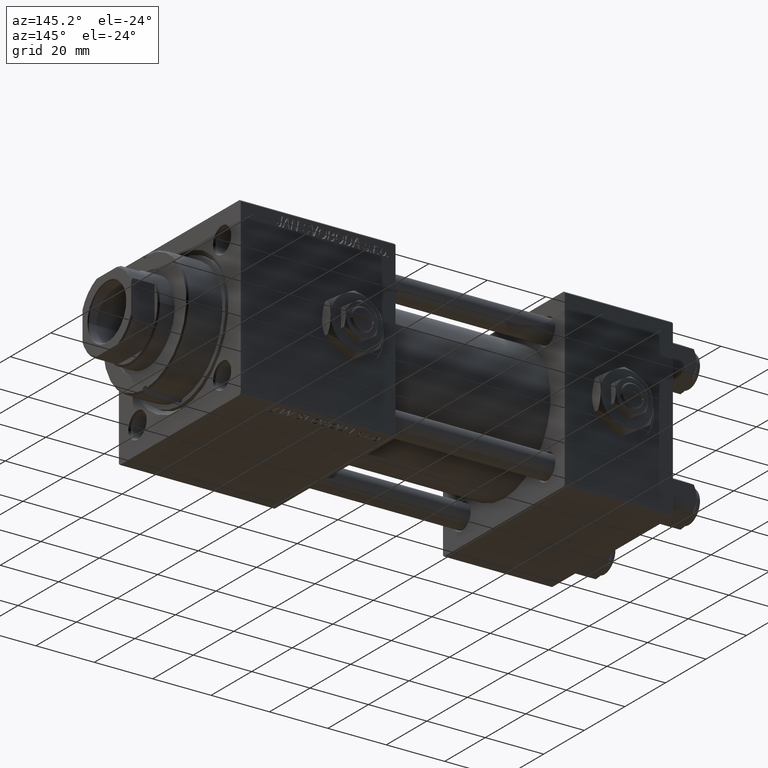
[diagram: clean part render]
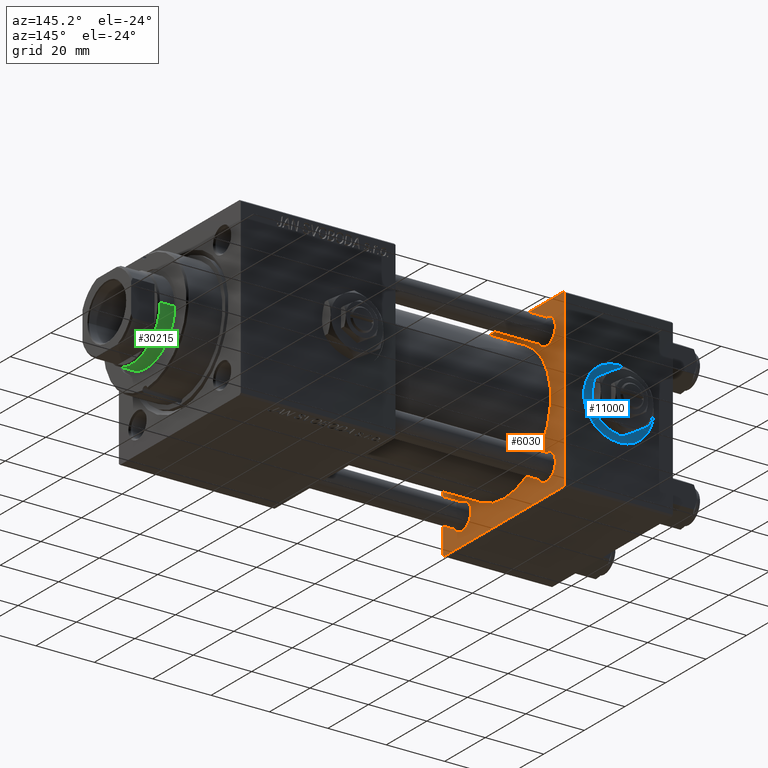
[diagram: same view with three faces highlighted in distinct colors, each labeled with its STEP entity id]
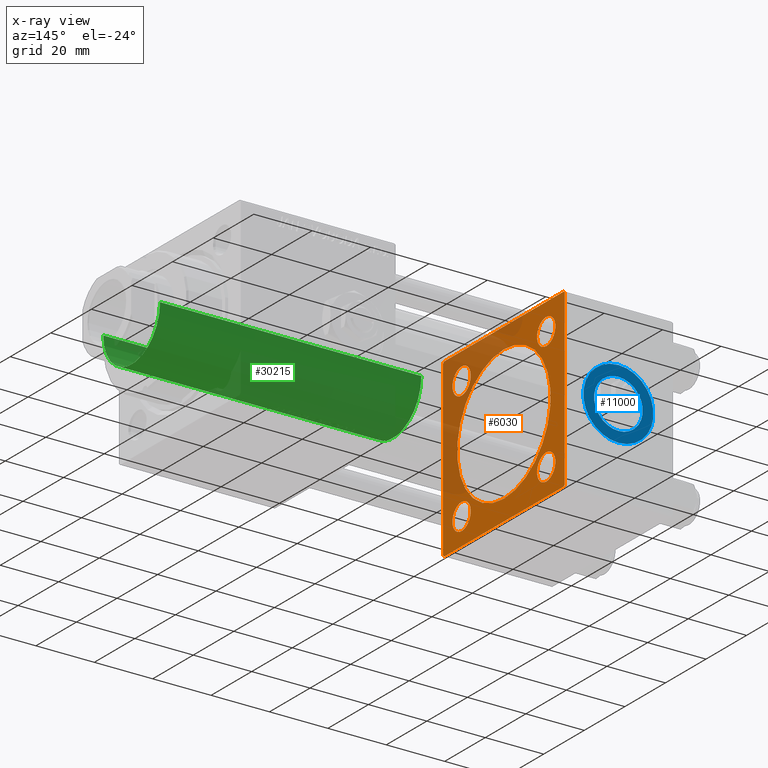
[diagram: x-ray of the same camera — body ghosted, the three highlighted faces saturated]
A machine part, auxiliary view with three faces highlighted in distinct colors.
The next image is the same camera in x-ray (body ghosted, the three faces saturated) — at least one of them is partly hidden behind the body in this view.
Their STEP definitions:

[orange] entity #6030 — the highlighted planar face has unit normal (-1, 0, 0).
#35 = CARTESIAN_POINT ( 'NONE',  ( 37.00000000000000000, -29.50000000000001066, -30.00000000000000711 ) ) ;
#65 = CIRCLE ( 'NONE', #28904, 4.499999999999990230 ) ;
#202 = DIRECTION ( 'NONE',  ( -1.000000000000000000, 0.000000000000000000, -0.000000000000000000 ) ) ;
#585 = FACE_OUTER_BOUND ( 'NONE', #4711, .T. ) ;
#648 = EDGE_LOOP ( 'NONE', ( #42142, #38592 ) ) ;
#847 = FACE_BOUND ( 'NONE', #648, .T. ) ;
#1163 = CARTESIAN_POINT ( 'NONE',  ( 37.00000000000000000, -29.50000000000000000, -30.00000000000000711 ) ) ;
#1738 = CARTESIAN_POINT ( 'NONE',  ( 37.00000000000000000, 29.99999999999999289, -30.00000000000000000 ) ) ;
#1876 = AXIS2_PLACEMENT_3D ( 'NONE', #5200, #49523, #29346 ) ;
#2033 = VERTEX_POINT ( 'NONE', #28191 ) ;
#3025 = EDGE_CURVE ( 'NONE', #21623, #25729, #17847, .T. ) ;
#3109 = DIRECTION ( 'NONE',  ( 0.000000000000000000, 0.000000000000000000, -1.000000000000000000 ) ) ;
#3363 = LINE ( 'NONE', #23789, #14025 ) ;
#3418 = CIRCLE ( 'NONE', #9329, 4.499999999999990230 ) ;
#4199 = DIRECTION ( 'NONE',  ( 0.000000000000000000, 0.000000000000000000, 1.000000000000000000 ) ) ;
#4557 = CARTESIAN_POINT ( 'NONE',  ( 37.00000000000000000, -30.00000000000000000, -29.50000000000001776 ) ) ;
#4568 = VERTEX_POINT ( 'NONE', #41334 ) ;
#4657 = VERTEX_POINT ( 'NONE', #47384 ) ;
#4711 = EDGE_LOOP ( 'NONE', ( #9139, #52205, #17994, #49702, #45420, #30776, #18960, #26610 ) ) ;
#4712 = LINE ( 'NONE', #44787, #42170 ) ;
#5102 = DIRECTION ( 'NONE',  ( -0.000000000000000000, 0.000000000000000000, 1.000000000000000000 ) ) ;
#5200 = CARTESIAN_POINT ( 'NONE',  ( 37.00000000000000000, -2.602085213965210642E-15, 0.000000000000000000 ) ) ;
#5342 = CARTESIAN_POINT ( 'NONE',  ( 37.00000000000000000, -20.84999999999999076, -16.35000000000001208 ) ) ;
#6030 = ADVANCED_FACE ( 'NONE', ( #20762, #9623, #21290, #13333, #847, #585 ), #25814, .F. ) ;
#6293 = ORIENTED_EDGE ( 'NONE', *, *, #8885, .T. ) ;
#6316 = EDGE_CURVE ( 'NONE', #25729, #4568, #31534, .T. ) ;
#6594 = VERTEX_POINT ( 'NONE', #9157 ) ;
#6905 = DIRECTION ( 'NONE',  ( 0.000000000000000000, 0.000000000000000000, 1.000000000000000000 ) ) ;
#6987 = CARTESIAN_POINT ( 'NONE',  ( 37.00000000000000000, 29.49999999999999289, 30.00000000000000000 ) ) ;
#8337 = EDGE_CURVE ( 'NONE', #14114, #21623, #14961, .T. ) ;
#8639 = DIRECTION ( 'NONE',  ( 0.000000000000000000, 0.000000000000000000, 1.000000000000000000 ) ) ;
#8704 = CARTESIAN_POINT ( 'NONE',  ( 37.00000000000000000, 20.84999999999999787, -20.85000000000000142 ) ) ;
#8885 = EDGE_CURVE ( 'NONE', #27608, #45506, #3418, .T. ) ;
#9049 = EDGE_CURVE ( 'NONE', #4657, #36431, #40687, .T. ) ;
#9139 = ORIENTED_EDGE ( 'NONE', *, *, #24316, .F. ) ;
#9157 = CARTESIAN_POINT ( 'NONE',  ( 37.00000000000000000, -20.84999999999999076, 16.35000000000001208 ) ) ;
#9326 = AXIS2_PLACEMENT_3D ( 'NONE', #8704, #202, #4199 ) ;
#9329 = AXIS2_PLACEMENT_3D ( 'NONE', #30187, #50611, #13727 ) ;
#9623 = FACE_BOUND ( 'NONE', #13751, .T. ) ;
#10230 = CIRCLE ( 'NONE', #9326, 4.499999999999990230 ) ;
#11083 = CIRCLE ( 'NONE', #47510, 4.499999999999990230 ) ;
#11538 = CARTESIAN_POINT ( 'NONE',  ( 37.00000000000000000, -29.49999999999998579, 29.99999999999999289 ) ) ;
#11921 = CARTESIAN_POINT ( 'NONE',  ( 37.00000000000000000, -2.602085213965210642E-15, 23.00000000000000000 ) ) ;
#12067 = DIRECTION ( 'NONE',  ( -1.000000000000000000, 0.000000000000000000, -0.000000000000000000 ) ) ;
#12522 = CARTESIAN_POINT ( 'NONE',  ( 37.00000000000000000, -30.00000000000000000, 29.99999999999999289 ) ) ;
#13333 = FACE_BOUND ( 'NONE', #22818, .T. ) ;
#13727 = DIRECTION ( 'NONE',  ( 0.000000000000000000, 0.000000000000000000, 1.000000000000000000 ) ) ;
#13751 = EDGE_LOOP ( 'NONE', ( #31224, #26981 ) ) ;
#14025 = VECTOR ( 'NONE', #3109, 1000.000000000000000 ) ;
#14114 = VERTEX_POINT ( 'NONE', #34797 ) ;
#14410 = CARTESIAN_POINT ( 'NONE',  ( 37.00000000000000000, 29.49999999999997868, -30.00000000000000000 ) ) ;
#14844 = CARTESIAN_POINT ( 'NONE',  ( 37.00000000000000000, -20.84999999999999076, 20.85000000000000497 ) ) ;
#14883 = DIRECTION ( 'NONE',  ( -1.000000000000000000, 0.000000000000000000, -0.000000000000000000 ) ) ;
#14961 = LINE ( 'NONE', #6987, #17786 ) ;
#15205 = ORIENTED_EDGE ( 'NONE', *, *, #9049, .T. ) ;
#15612 = CIRCLE ( 'NONE', #43573, 4.499999999999990230 ) ;
#16503 = LINE ( 'NONE', #35, #46717 ) ;
#16766 = VECTOR ( 'NONE', #21802, 1000.000000000000000 ) ;
#16781 = CARTESIAN_POINT ( 'NONE',  ( 37.00000000000000000, 0.000000000000000000, 0.000000000000000000 ) ) ;
#17552 = LINE ( 'NONE', #12522, #16766 ) ;
#17786 = VECTOR ( 'NONE', #51579, 1000.000000000000114 ) ;
#17847 = LINE ( 'NONE', #26340, #37252 ) ;
#17994 = ORIENTED_EDGE ( 'NONE', *, *, #52254, .F. ) ;
#18717 = EDGE_CURVE ( 'NONE', #36431, #4657, #11083, .T. ) ;
#18783 = CARTESIAN_POINT ( 'NONE',  ( 37.00000000000000000, 20.84999999999999787, 16.35000000000001208 ) ) ;
#18837 = EDGE_CURVE ( 'NONE', #28414, #50241, #65, .T. ) ;
#18960 = ORIENTED_EDGE ( 'NONE', *, *, #42437, .T. ) ;
#19496 = EDGE_CURVE ( 'NONE', #23029, #21769, #16503, .T. ) ;
#19958 = DIRECTION ( 'NONE',  ( 0.000000000000000000, 0.000000000000000000, 1.000000000000000000 ) ) ;
#20147 = CIRCLE ( 'NONE', #33707, 4.499999999999990230 ) ;
#20762 = FACE_BOUND ( 'NONE', #21092, .T. ) ;
#21092 = EDGE_LOOP ( 'NONE', ( #46940, #6293 ) ) ;
#21290 = FACE_BOUND ( 'NONE', #40286, .T. ) ;
#21377 = CIRCLE ( 'NONE', #1876, 23.00000000000000000 ) ;
#21398 = EDGE_CURVE ( 'NONE', #45757, #51806, #21377, .T. ) ;
#21623 = VERTEX_POINT ( 'NONE', #32483 ) ;
#21769 = VERTEX_POINT ( 'NONE', #1163 ) ;
#21802 = DIRECTION ( 'NONE',  ( 0.000000000000000000, 0.000000000000000000, -1.000000000000000000 ) ) ;
#22148 = DIRECTION ( 'NONE',  ( -1.000000000000000000, 0.000000000000000000, -0.000000000000000000 ) ) ;
#22818 = EDGE_LOOP ( 'NONE', ( #33026, #15205 ) ) ;
#23029 = VERTEX_POINT ( 'NONE', #4557 ) ;
#23320 = CARTESIAN_POINT ( 'NONE',  ( 37.00000000000000000, -30.00000000000000000, 29.49999999999999289 ) ) ;
#23789 = CARTESIAN_POINT ( 'NONE',  ( 37.00000000000000000, 29.99999999999999289, 30.00000000000000000 ) ) ;
#24018 = VECTOR ( 'NONE', #33053, 1000.000000000000000 ) ;
#24196 = DIRECTION ( 'NONE',  ( -1.000000000000000000, 0.000000000000000000, -0.000000000000000000 ) ) ;
#24316 = EDGE_CURVE ( 'NONE', #35586, #21769, #29870, .T. ) ;
#25183 = DIRECTION ( 'NONE',  ( 0.000000000000000000, 0.000000000000000000, 1.000000000000000000 ) ) ;
#25729 = VERTEX_POINT ( 'NONE', #11538 ) ;
#25814 = PLANE ( 'NONE',  #32211 ) ;
#26340 = CARTESIAN_POINT ( 'NONE',  ( 37.00000000000000000, 29.99999999999999289, 30.00000000000000000 ) ) ;
#26610 = ORIENTED_EDGE ( 'NONE', *, *, #19496, .T. ) ;
#26981 = ORIENTED_EDGE ( 'NONE', *, *, #44693, .T. ) ;
#27047 = DIRECTION ( 'NONE',  ( -1.000000000000000000, 0.000000000000000000, -0.000000000000000000 ) ) ;
#27279 = EDGE_CURVE ( 'NONE', #6594, #47339, #42672, .T. ) ;
#27608 = VERTEX_POINT ( 'NONE', #5342 ) ;
#28128 = CARTESIAN_POINT ( 'NONE',  ( 37.00000000000000000, -20.84999999999999076, 25.34999999999999432 ) ) ;
#28191 = CARTESIAN_POINT ( 'NONE',  ( 37.00000000000000000, 29.99999999999999289, -29.50000000000000000 ) ) ;
#28333 = DIRECTION ( 'NONE',  ( 0.000000000000000000, 0.000000000000000000, 1.000000000000000000 ) ) ;
#28414 = VERTEX_POINT ( 'NONE', #47833 ) ;
#28553 = CARTESIAN_POINT ( 'NONE',  ( 37.00000000000000000, 2.146024240737012665E-16, -23.00000000000000000 ) ) ;
#28904 = AXIS2_PLACEMENT_3D ( 'NONE', #47500, #14883, #6905 ) ;
#29346 = DIRECTION ( 'NONE',  ( 0.000000000000000000, 0.000000000000000000, 1.000000000000000000 ) ) ;
#29669 = EDGE_CURVE ( 'NONE', #47339, #6594, #15612, .T. ) ;
#29870 = LINE ( 'NONE', #1738, #24018 ) ;
#30185 = ORIENTED_EDGE ( 'NONE', *, *, #29669, .T. ) ;
#30187 = CARTESIAN_POINT ( 'NONE',  ( 37.00000000000000000, -20.84999999999999076, -20.85000000000000497 ) ) ;
#30597 = DIRECTION ( 'NONE',  ( 1.000000000000000000, -0.000000000000000000, 0.000000000000000000 ) ) ;
#30776 = ORIENTED_EDGE ( 'NONE', *, *, #6316, .T. ) ;
#31224 = ORIENTED_EDGE ( 'NONE', *, *, #18837, .T. ) ;
#31534 = LINE ( 'NONE', #23320, #40606 ) ;
#32211 = AXIS2_PLACEMENT_3D ( 'NONE', #16781, #41994, #5102 ) ;
#32483 = CARTESIAN_POINT ( 'NONE',  ( 37.00000000000000000, 29.49999999999999289, 30.00000000000000000 ) ) ;
#32597 = CARTESIAN_POINT ( 'NONE',  ( 37.00000000000000000, -20.84999999999999076, -25.34999999999999432 ) ) ;
#33026 = ORIENTED_EDGE ( 'NONE', *, *, #18717, .T. ) ;
#33053 = DIRECTION ( 'NONE',  ( 0.000000000000000000, -1.000000000000000000, -1.156482317317871725E-16 ) ) ;
#33707 = AXIS2_PLACEMENT_3D ( 'NONE', #45355, #36851, #25183 ) ;
#34797 = CARTESIAN_POINT ( 'NONE',  ( 37.00000000000000000, 29.99999999999999289, 29.50000000000000000 ) ) ;
#35586 = VERTEX_POINT ( 'NONE', #14410 ) ;
#35644 = EDGE_CURVE ( 'NONE', #51806, #45757, #40368, .T. ) ;
#35855 = CARTESIAN_POINT ( 'NONE',  ( 37.00000000000000000, 20.84999999999999787, -16.35000000000001208 ) ) ;
#35940 = CARTESIAN_POINT ( 'NONE',  ( 37.00000000000000000, -20.84999999999999076, 20.85000000000000497 ) ) ;
#36154 = ORIENTED_EDGE ( 'NONE', *, *, #27279, .T. ) ;
#36201 = DIRECTION ( 'NONE',  ( 0.000000000000000000, 0.000000000000000000, 1.000000000000000000 ) ) ;
#36431 = VERTEX_POINT ( 'NONE', #18783 ) ;
#36851 = DIRECTION ( 'NONE',  ( -1.000000000000000000, 0.000000000000000000, -0.000000000000000000 ) ) ;
#37252 = VECTOR ( 'NONE', #45708, 1000.000000000000000 ) ;
#38300 = EDGE_CURVE ( 'NONE', #45506, #27608, #20147, .T. ) ;
#38592 = ORIENTED_EDGE ( 'NONE', *, *, #21398, .F. ) ;
#38997 = AXIS2_PLACEMENT_3D ( 'NONE', #45768, #22148, #50806 ) ;
#40286 = EDGE_LOOP ( 'NONE', ( #36154, #30185 ) ) ;
#40368 = CIRCLE ( 'NONE', #42930, 23.00000000000000000 ) ;
#40606 = VECTOR ( 'NONE', #51716, 1000.000000000000114 ) ;
#40674 = EDGE_CURVE ( 'NONE', #35586, #2033, #4712, .T. ) ;
#40687 = CIRCLE ( 'NONE', #38997, 4.499999999999990230 ) ;
#40901 = DIRECTION ( 'NONE',  ( 0.000000000000000000, 0.7071067811865474617, -0.7071067811865474617 ) ) ;
#41334 = CARTESIAN_POINT ( 'NONE',  ( 37.00000000000000000, -30.00000000000000000, 29.49999999999999289 ) ) ;
#41546 = CARTESIAN_POINT ( 'NONE',  ( 37.00000000000000000, -2.602085213965210642E-15, 0.000000000000000000 ) ) ;
#41994 = DIRECTION ( 'NONE',  ( -1.000000000000000000, 0.000000000000000000, -0.000000000000000000 ) ) ;
#42142 = ORIENTED_EDGE ( 'NONE', *, *, #35644, .F. ) ;
#42170 = VECTOR ( 'NONE', #52493, 999.9999999999998863 ) ;
#42437 = EDGE_CURVE ( 'NONE', #4568, #23029, #17552, .T. ) ;
#42672 = CIRCLE ( 'NONE', #43496, 4.499999999999990230 ) ;
#42930 = AXIS2_PLACEMENT_3D ( 'NONE', #41546, #30597, #8639 ) ;
#43496 = AXIS2_PLACEMENT_3D ( 'NONE', #35940, #12067, #36201 ) ;
#43573 = AXIS2_PLACEMENT_3D ( 'NONE', #14844, #27047, #28333 ) ;
#44693 = EDGE_CURVE ( 'NONE', #50241, #28414, #10230, .T. ) ;
#44787 = CARTESIAN_POINT ( 'NONE',  ( 37.00000000000000000, 29.99999999999999289, -29.50000000000000000 ) ) ;
#44891 = CARTESIAN_POINT ( 'NONE',  ( 37.00000000000000000, 20.84999999999999787, 20.85000000000000142 ) ) ;
#45355 = CARTESIAN_POINT ( 'NONE',  ( 37.00000000000000000, -20.84999999999999076, -20.85000000000000497 ) ) ;
#45420 = ORIENTED_EDGE ( 'NONE', *, *, #3025, .T. ) ;
#45506 = VERTEX_POINT ( 'NONE', #32597 ) ;
#45708 = DIRECTION ( 'NONE',  ( 0.000000000000000000, -1.000000000000000000, -1.156482317317871725E-16 ) ) ;
#45757 = VERTEX_POINT ( 'NONE', #28553 ) ;
#45768 = CARTESIAN_POINT ( 'NONE',  ( 37.00000000000000000, 20.84999999999999787, 20.85000000000000142 ) ) ;
#46717 = VECTOR ( 'NONE', #40901, 1000.000000000000114 ) ;
#46940 = ORIENTED_EDGE ( 'NONE', *, *, #38300, .T. ) ;
#47339 = VERTEX_POINT ( 'NONE', #28128 ) ;
#47384 = CARTESIAN_POINT ( 'NONE',  ( 37.00000000000000000, 20.84999999999999787, 25.34999999999999076 ) ) ;
#47500 = CARTESIAN_POINT ( 'NONE',  ( 37.00000000000000000, 20.84999999999999787, -20.85000000000000142 ) ) ;
#47510 = AXIS2_PLACEMENT_3D ( 'NONE', #44891, #24196, #19958 ) ;
#47833 = CARTESIAN_POINT ( 'NONE',  ( 37.00000000000000000, 20.84999999999999787, -25.34999999999999076 ) ) ;
#49523 = DIRECTION ( 'NONE',  ( 1.000000000000000000, -0.000000000000000000, 0.000000000000000000 ) ) ;
#49702 = ORIENTED_EDGE ( 'NONE', *, *, #8337, .T. ) ;
#50241 = VERTEX_POINT ( 'NONE', #35855 ) ;
#50611 = DIRECTION ( 'NONE',  ( -1.000000000000000000, 0.000000000000000000, -0.000000000000000000 ) ) ;
#50806 = DIRECTION ( 'NONE',  ( 0.000000000000000000, 0.000000000000000000, 1.000000000000000000 ) ) ;
#51579 = DIRECTION ( 'NONE',  ( 0.000000000000000000, -0.7071067811865474617, 0.7071067811865474617 ) ) ;
#51716 = DIRECTION ( 'NONE',  ( -0.000000000000000000, -0.7071067811865474617, -0.7071067811865474617 ) ) ;
#51806 = VERTEX_POINT ( 'NONE', #11921 ) ;
#52205 = ORIENTED_EDGE ( 'NONE', *, *, #40674, .T. ) ;
#52254 = EDGE_CURVE ( 'NONE', #14114, #2033, #3363, .T. ) ;
#52493 = DIRECTION ( 'NONE',  ( -0.000000000000000000, 0.7071067811865574537, 0.7071067811865376918 ) ) ;

[blue] entity #11000 — the highlighted planar face has unit normal (0, 1, 0).
#394 = AXIS2_PLACEMENT_3D ( 'NONE', #37902, #29142, #16934 ) ;
#542 = DIRECTION ( 'NONE',  ( 0.000000000000000000, 1.000000000000000000, 0.000000000000000000 ) ) ;
#803 = DIRECTION ( 'NONE',  ( 0.000000000000000000, 0.000000000000000000, 1.000000000000000000 ) ) ;
#1474 = DIRECTION ( 'NONE',  ( 0.000000000000000000, 1.000000000000000000, 0.000000000000000000 ) ) ;
#2023 = CARTESIAN_POINT ( 'NONE',  ( 18.50000000000000000, 29.79999999999999361, 0.000000000000000000 ) ) ;
#2392 = EDGE_LOOP ( 'NONE', ( #16192, #26333 ) ) ;
#6025 = CARTESIAN_POINT ( 'NONE',  ( 18.50000000000000000, 29.79999999999999361, 12.00000000000000178 ) ) ;
#6800 = AXIS2_PLACEMENT_3D ( 'NONE', #41404, #542, #803 ) ;
#7689 = AXIS2_PLACEMENT_3D ( 'NONE', #2023, #22185, #11034 ) ;
#11000 = ADVANCED_FACE ( 'NONE', ( #17148, #49526 ), #13173, .T. ) ;
#11034 = DIRECTION ( 'NONE',  ( 0.000000000000000000, -0.000000000000000000, 1.000000000000000000 ) ) ;
#12726 = CARTESIAN_POINT ( 'NONE',  ( 18.50000000000000000, 29.79999999999999361, 0.000000000000000000 ) ) ;
#13031 = AXIS2_PLACEMENT_3D ( 'NONE', #32862, #1474, #17666 ) ;
#13173 = PLANE ( 'NONE',  #7689 ) ;
#14810 = CARTESIAN_POINT ( 'NONE',  ( 18.50000000000000000, 29.79999999999999361, 8.330000000000001847 ) ) ;
#15940 = CIRCLE ( 'NONE', #26988, 8.330000000000001847 ) ;
#16192 = ORIENTED_EDGE ( 'NONE', *, *, #51909, .T. ) ;
#16934 = DIRECTION ( 'NONE',  ( 0.000000000000000000, 0.000000000000000000, 1.000000000000000000 ) ) ;
#17148 = FACE_BOUND ( 'NONE', #24327, .T. ) ;
#17666 = DIRECTION ( 'NONE',  ( 0.000000000000000000, 0.000000000000000000, 1.000000000000000000 ) ) ;
#19211 = VERTEX_POINT ( 'NONE', #41509 ) ;
#22185 = DIRECTION ( 'NONE',  ( 0.000000000000000000, 1.000000000000000000, 0.000000000000000000 ) ) ;
#24327 = EDGE_LOOP ( 'NONE', ( #41794, #47772 ) ) ;
#25611 = EDGE_CURVE ( 'NONE', #19211, #43147, #50327, .T. ) ;
#26333 = ORIENTED_EDGE ( 'NONE', *, *, #25611, .T. ) ;
#26988 = AXIS2_PLACEMENT_3D ( 'NONE', #12726, #44845, #40845 ) ;
#29142 = DIRECTION ( 'NONE',  ( 0.000000000000000000, 1.000000000000000000, 0.000000000000000000 ) ) ;
#32862 = CARTESIAN_POINT ( 'NONE',  ( 18.50000000000000000, 29.79999999999999361, 0.000000000000000000 ) ) ;
#37349 = VERTEX_POINT ( 'NONE', #14810 ) ;
#37679 = CIRCLE ( 'NONE', #394, 12.00000000000000178 ) ;
#37902 = CARTESIAN_POINT ( 'NONE',  ( 18.50000000000000000, 29.79999999999999361, 0.000000000000000000 ) ) ;
#38168 = CIRCLE ( 'NONE', #6800, 8.330000000000001847 ) ;
#39616 = EDGE_CURVE ( 'NONE', #40404, #37349, #15940, .T. ) ;
#40404 = VERTEX_POINT ( 'NONE', #52107 ) ;
#40845 = DIRECTION ( 'NONE',  ( 0.000000000000000000, 0.000000000000000000, 1.000000000000000000 ) ) ;
#41404 = CARTESIAN_POINT ( 'NONE',  ( 18.50000000000000000, 29.79999999999999361, 0.000000000000000000 ) ) ;
#41509 = CARTESIAN_POINT ( 'NONE',  ( 18.50000000000000000, 29.79999999999999361, -12.00000000000000178 ) ) ;
#41794 = ORIENTED_EDGE ( 'NONE', *, *, #45205, .F. ) ;
#43147 = VERTEX_POINT ( 'NONE', #6025 ) ;
#44845 = DIRECTION ( 'NONE',  ( 0.000000000000000000, 1.000000000000000000, 0.000000000000000000 ) ) ;
#45205 = EDGE_CURVE ( 'NONE', #37349, #40404, #38168, .T. ) ;
#47772 = ORIENTED_EDGE ( 'NONE', *, *, #39616, .F. ) ;
#49526 = FACE_OUTER_BOUND ( 'NONE', #2392, .T. ) ;
#50327 = CIRCLE ( 'NONE', #13031, 12.00000000000000178 ) ;
#51909 = EDGE_CURVE ( 'NONE', #43147, #19211, #37679, .T. ) ;
#52107 = CARTESIAN_POINT ( 'NONE',  ( 18.50000000000000000, 29.79999999999999361, -8.330000000000001847 ) ) ;

[green] entity #30215 — the highlighted cylindrical surface (partial cylindrical patch) has radius 14 mm, axis along (-1, 0, 0).
#582 = VERTEX_POINT ( 'NONE', #46908 ) ;
#608 = VERTEX_POINT ( 'NONE', #47168 ) ;
#1141 = CARTESIAN_POINT ( 'NONE',  ( 14.00000000000000178, 1.714505518806294441E-15, 128.0000000000000000 ) ) ;
#4385 = ORIENTED_EDGE ( 'NONE', *, *, #50815, .F. ) ;
#4497 = EDGE_LOOP ( 'NONE', ( #15428, #51580, #17911, #4385 ) ) ;
#4509 = VECTOR ( 'NONE', #29270, 1000.000000000000000 ) ;
#5181 = CYLINDRICAL_SURFACE ( 'NONE', #35118, 14.00000000000000178 ) ;
#8060 = VERTEX_POINT ( 'NONE', #12340 ) ;
#8615 = EDGE_CURVE ( 'NONE', #33040, #608, #35606, .T. ) ;
#10309 = LINE ( 'NONE', #18004, #35106 ) ;
#11170 = CARTESIAN_POINT ( 'NONE',  ( 0.000000000000000000, 0.000000000000000000, 38.00000000000000000 ) ) ;
#12340 = CARTESIAN_POINT ( 'NONE',  ( 14.00000000000000178, 1.714505518806294441E-15, 38.00000000000000000 ) ) ;
#13054 = CARTESIAN_POINT ( 'NONE',  ( 0.000000000000000000, 0.000000000000000000, 127.5000000000000853 ) ) ;
#14267 = CIRCLE ( 'NONE', #27763, 14.00000000000000178 ) ;
#15428 = ORIENTED_EDGE ( 'NONE', *, *, #8615, .T. ) ;
#17654 = DIRECTION ( 'NONE',  ( -0.000000000000000000, -0.000000000000000000, -1.000000000000000000 ) ) ;
#17911 = ORIENTED_EDGE ( 'NONE', *, *, #38682, .T. ) ;
#18004 = CARTESIAN_POINT ( 'NONE',  ( -14.00000000000000178, 0.000000000000000000, 128.0000000000000000 ) ) ;
#22850 = DIRECTION ( 'NONE',  ( 0.000000000000000000, 0.000000000000000000, 1.000000000000000000 ) ) ;
#24854 = EDGE_CURVE ( 'NONE', #608, #8060, #32991, .T. ) ;
#26491 = DIRECTION ( 'NONE',  ( -0.000000000000000000, -0.000000000000000000, -1.000000000000000000 ) ) ;
#27763 = AXIS2_PLACEMENT_3D ( 'NONE', #11170, #22850, #43016 ) ;
#29236 = DIRECTION ( 'NONE',  ( 0.000000000000000000, 0.000000000000000000, -1.000000000000000000 ) ) ;
#29270 = DIRECTION ( 'NONE',  ( -0.000000000000000000, -0.000000000000000000, -1.000000000000000000 ) ) ;
#30215 = ADVANCED_FACE ( 'NONE', ( #37820 ), #5181, .T. ) ;
#32991 = LINE ( 'NONE', #1141, #4509 ) ;
#33040 = VERTEX_POINT ( 'NONE', #51804 ) ;
#33835 = DIRECTION ( 'NONE',  ( -1.000000000000000000, 0.000000000000000000, 0.000000000000000000 ) ) ;
#35106 = VECTOR ( 'NONE', #26491, 1000.000000000000000 ) ;
#35118 = AXIS2_PLACEMENT_3D ( 'NONE', #37551, #17654, #33835 ) ;
#35606 = CIRCLE ( 'NONE', #42416, 14.00000000000000178 ) ;
#37551 = CARTESIAN_POINT ( 'NONE',  ( 0.000000000000000000, 0.000000000000000000, 128.0000000000000000 ) ) ;
#37820 = FACE_OUTER_BOUND ( 'NONE', #4497, .T. ) ;
#38682 = EDGE_CURVE ( 'NONE', #8060, #582, #14267, .T. ) ;
#42416 = AXIS2_PLACEMENT_3D ( 'NONE', #13054, #29236, #45434 ) ;
#43016 = DIRECTION ( 'NONE',  ( 1.000000000000000000, 0.000000000000000000, 0.000000000000000000 ) ) ;
#45434 = DIRECTION ( 'NONE',  ( 1.000000000000000000, 0.000000000000000000, 0.000000000000000000 ) ) ;
#46908 = CARTESIAN_POINT ( 'NONE',  ( -14.00000000000000178, 0.000000000000000000, 38.00000000000000000 ) ) ;
#47168 = CARTESIAN_POINT ( 'NONE',  ( 14.00000000000000178, 1.714505518806294441E-15, 127.5000000000000853 ) ) ;
#50815 = EDGE_CURVE ( 'NONE', #33040, #582, #10309, .T. ) ;
#51580 = ORIENTED_EDGE ( 'NONE', *, *, #24854, .T. ) ;
#51804 = CARTESIAN_POINT ( 'NONE',  ( -14.00000000000000178, 0.000000000000000000, 127.5000000000000853 ) ) ;